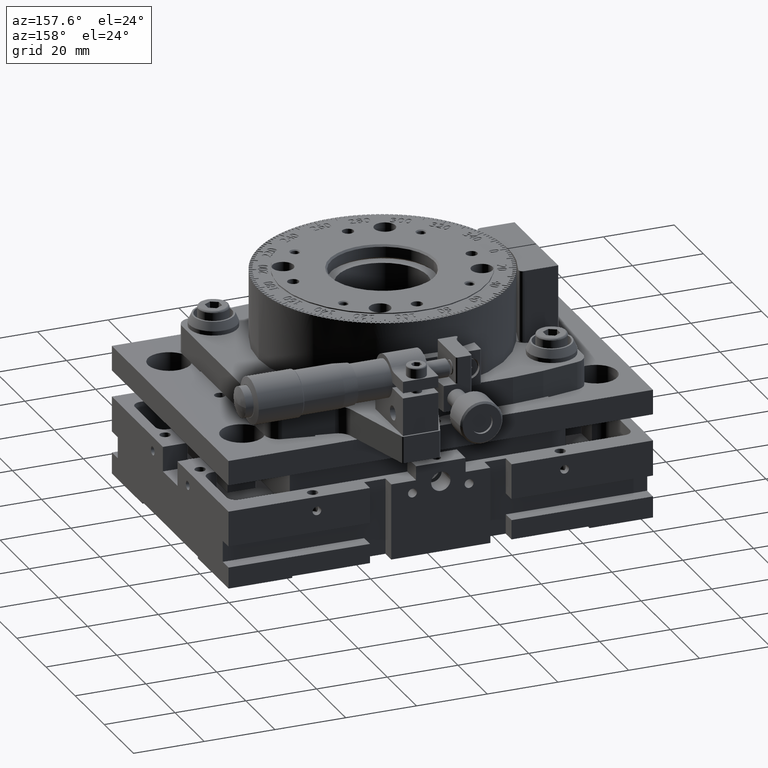
[diagram: clean part render]
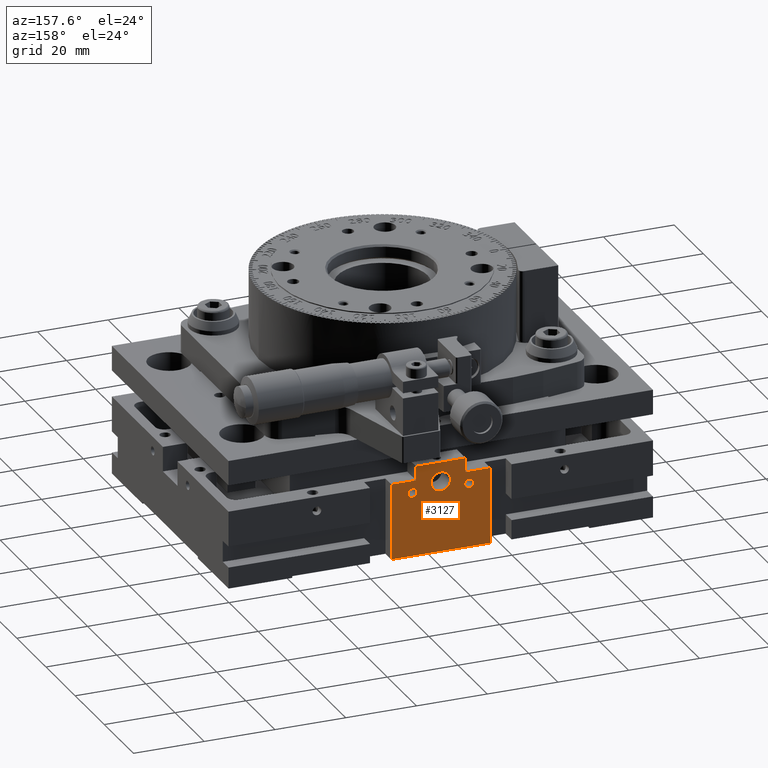
[diagram: same view with one face highlighted and labeled with its STEP entity id]
A machine part, auxiliary view. The second image highlights one B-rep face of the part: STEP entity #3127.
In plain terms, the highlighted face is a freeform B-spline surface patch.
Its self-contained STEP definition (entity closure, byte-faithful):
#3127=ADVANCED_FACE('',(#6324,#3657,#3658,#3659),#103637,.T.);
#3657=FACE_BOUND('',#9486,.T.);
#3658=FACE_BOUND('',#9487,.T.);
#3659=FACE_BOUND('',#9488,.T.);
#6324=FACE_OUTER_BOUND('',#9485,.T.);
#9485=EDGE_LOOP('',(#24416,#24417,#24418,#24419,#24420,#24421,#24422,#24423));
#9486=EDGE_LOOP('',(#24424,#24425));
#9487=EDGE_LOOP('',(#24426,#24427));
#9488=EDGE_LOOP('',(#24428,#24429));
#24416=ORIENTED_EDGE('',*,*,#91003,.F.);
#24417=ORIENTED_EDGE('',*,*,#91583,.T.);
#24418=ORIENTED_EDGE('',*,*,#91322,.F.);
#24419=ORIENTED_EDGE('',*,*,#91345,.F.);
#24420=ORIENTED_EDGE('',*,*,#91351,.F.);
#24421=ORIENTED_EDGE('',*,*,#91349,.F.);
#24422=ORIENTED_EDGE('',*,*,#91303,.F.);
#24423=ORIENTED_EDGE('',*,*,#91582,.F.);
#24424=ORIENTED_EDGE('',*,*,#90956,.F.);
#24425=ORIENTED_EDGE('',*,*,#91584,.T.);
#24426=ORIENTED_EDGE('',*,*,#90964,.F.);
#24427=ORIENTED_EDGE('',*,*,#91585,.T.);
#24428=ORIENTED_EDGE('',*,*,#90984,.F.);
#24429=ORIENTED_EDGE('',*,*,#91586,.T.);
#42705=B_SPLINE_CURVE_WITH_KNOTS('',1,(#185273,#185274),.UNSPECIFIED.,.F.,
 .F.,(2,2),(-3.92699081698724,0.),.UNSPECIFIED.);
#42717=B_SPLINE_CURVE_WITH_KNOTS('',1,(#185317,#185318),.UNSPECIFIED.,.F.,
 .F.,(2,2),(-3.92699081698724,0.),.UNSPECIFIED.);
#42753=B_SPLINE_CURVE_WITH_KNOTS('',1,(#185493,#185494),.UNSPECIFIED.,.F.,
 .F.,(2,2),(-8.57497714797334,0.),.UNSPECIFIED.);
#42787=B_SPLINE_CURVE_WITH_KNOTS('',1,(#185576,#185577),.UNSPECIFIED.,.F.,
 .F.,(2,2),(-27.9999999999999,0.),.UNSPECIFIED.);
#42788=B_SPLINE_CURVE_WITH_KNOTS('',1,(#185578,#185579),.UNSPECIFIED.,.F.,
 .F.,(2,2),(-27.9999999999999,0.),.UNSPECIFIED.);
#43409=B_SPLINE_CURVE_WITH_KNOTS('',1,(#187651,#187652),.UNSPECIFIED.,.F.,
 .F.,(2,2),(0.,7.),.UNSPECIFIED.);
#43410=B_SPLINE_CURVE_WITH_KNOTS('',1,(#187653,#187654),.UNSPECIFIED.,.F.,
 .F.,(2,2),(0.,7.),.UNSPECIFIED.);
#43432=B_SPLINE_CURVE_WITH_KNOTS('',1,(#187761,#187762),.UNSPECIFIED.,.F.,
 .F.,(2,2),(0.,7.),.UNSPECIFIED.);
#43433=B_SPLINE_CURVE_WITH_KNOTS('',1,(#187763,#187764),.UNSPECIFIED.,.F.,
 .F.,(2,2),(0.,7.),.UNSPECIFIED.);
#43476=B_SPLINE_CURVE_WITH_KNOTS('',1,(#187951,#187952),.UNSPECIFIED.,.F.,
 .F.,(2,2),(-4.,0.),.UNSPECIFIED.);
#43477=B_SPLINE_CURVE_WITH_KNOTS('',1,(#187953,#187954),.UNSPECIFIED.,.F.,
 .F.,(2,2),(-4.,0.),.UNSPECIFIED.);
#43486=B_SPLINE_CURVE_WITH_KNOTS('',1,(#187971,#187972),.UNSPECIFIED.,.F.,
 .F.,(2,2),(0.,4.),.UNSPECIFIED.);
#43487=B_SPLINE_CURVE_WITH_KNOTS('',1,(#187973,#187974),.UNSPECIFIED.,.F.,
 .F.,(2,2),(0.,4.),.UNSPECIFIED.);
#43492=B_SPLINE_CURVE_WITH_KNOTS('',1,(#187983,#187984),.UNSPECIFIED.,.F.,
 .F.,(2,2),(-14.,0.),.UNSPECIFIED.);
#43493=B_SPLINE_CURVE_WITH_KNOTS('',1,(#187985,#187986),.UNSPECIFIED.,.F.,
 .F.,(2,2),(-14.,0.),.UNSPECIFIED.);
#44198=B_SPLINE_CURVE_WITH_KNOTS('',1,(#190506,#190507),.UNSPECIFIED.,.F.,
 .F.,(2,2),(-21.5,0.),.UNSPECIFIED.);
#44199=B_SPLINE_CURVE_WITH_KNOTS('',1,(#190508,#190509),.UNSPECIFIED.,.F.,
 .F.,(2,2),(-21.5,0.),.UNSPECIFIED.);
#44202=B_SPLINE_CURVE_WITH_KNOTS('',1,(#190514,#190515),.UNSPECIFIED.,.F.,
 .F.,(2,2),(-27.9999999999999,0.),.UNSPECIFIED.);
#44203=B_SPLINE_CURVE_WITH_KNOTS('',1,(#190516,#190517),.UNSPECIFIED.,.F.,
 .F.,(2,2),(-21.5,0.),.UNSPECIFIED.);
#44204=B_SPLINE_CURVE_WITH_KNOTS('',1,(#190518,#190519),.UNSPECIFIED.,.F.,
 .F.,(2,2),(-21.5,0.),.UNSPECIFIED.);
#44205=B_SPLINE_CURVE_WITH_KNOTS('',1,(#190520,#190521),.UNSPECIFIED.,.F.,
 .F.,(2,2),(0.,7.),.UNSPECIFIED.);
#44206=B_SPLINE_CURVE_WITH_KNOTS('',1,(#190522,#190523),.UNSPECIFIED.,.F.,
 .F.,(2,2),(-4.,0.),.UNSPECIFIED.);
#44207=B_SPLINE_CURVE_WITH_KNOTS('',1,(#190524,#190525),.UNSPECIFIED.,.F.,
 .F.,(2,2),(-14.,0.),.UNSPECIFIED.);
#44208=B_SPLINE_CURVE_WITH_KNOTS('',1,(#190526,#190527),.UNSPECIFIED.,.F.,
 .F.,(2,2),(0.,4.),.UNSPECIFIED.);
#44209=B_SPLINE_CURVE_WITH_KNOTS('',1,(#190528,#190529),.UNSPECIFIED.,.F.,
 .F.,(2,2),(0.,7.),.UNSPECIFIED.);
#44210=B_SPLINE_CURVE_WITH_KNOTS('',1,(#190530,#190531),.UNSPECIFIED.,.F.,
 .F.,(2,2),(-21.5,0.),.UNSPECIFIED.);
#44214=B_SPLINE_CURVE_WITH_KNOTS('',1,(#190583,#190584),.UNSPECIFIED.,.F.,
 .F.,(2,2),(-21.5,0.),.UNSPECIFIED.);
#44250=B_SPLINE_CURVE_WITH_KNOTS('',1,(#190687,#190688),.UNSPECIFIED.,.F.,
 .F.,(2,2),(0.,3.92699081698724),.UNSPECIFIED.);
#44258=B_SPLINE_CURVE_WITH_KNOTS('',1,(#190703,#190704),.UNSPECIFIED.,.F.,
 .F.,(2,2),(0.,3.92699081698724),.UNSPECIFIED.);
#44266=B_SPLINE_CURVE_WITH_KNOTS('',1,(#190719,#190720),.UNSPECIFIED.,.F.,
 .F.,(2,2),(0.,8.57497714797334),.UNSPECIFIED.);
#58543=PCURVE('',#101451,#74136);
#58551=PCURVE('',#101453,#74144);
#58575=PCURVE('',#101459,#74168);
#58594=PCURVE('',#103512,#74187);
#59103=PCURVE('',#103592,#74696);
#59123=PCURVE('',#103593,#74716);
#59166=PCURVE('',#103598,#74759);
#59172=PCURVE('',#103599,#74765);
#59176=PCURVE('',#103600,#74769);
#59818=PCURVE('',#103636,#75411);
#59821=PCURVE('',#103637,#75414);
#59822=PCURVE('',#103637,#75415);
#59823=PCURVE('',#103637,#75416);
#59824=PCURVE('',#103637,#75417);
#59825=PCURVE('',#103637,#75418);
#59826=PCURVE('',#103637,#75419);
#59827=PCURVE('',#103637,#75420);
#59828=PCURVE('',#103637,#75421);
#59829=PCURVE('',#103637,#75422);
#59830=PCURVE('',#103637,#75423);
#59831=PCURVE('',#103637,#75424);
#59832=PCURVE('',#103637,#75425);
#59833=PCURVE('',#103637,#75426);
#59834=PCURVE('',#103637,#75427);
#59838=PCURVE('',#103638,#75431);
#59874=PCURVE('',#101537,#75467);
#59882=PCURVE('',#101539,#75475);
#59890=PCURVE('',#101541,#75483);
#74136=DEFINITIONAL_REPRESENTATION('',(#42705),#197026);
#74144=DEFINITIONAL_REPRESENTATION('',(#42717),#197026);
#74168=DEFINITIONAL_REPRESENTATION('',(#42753),#197026);
#74187=DEFINITIONAL_REPRESENTATION('',(#42788),#197026);
#74696=DEFINITIONAL_REPRESENTATION('',(#43410),#197026);
#74716=DEFINITIONAL_REPRESENTATION('',(#43433),#197026);
#74759=DEFINITIONAL_REPRESENTATION('',(#43477),#197026);
#74765=DEFINITIONAL_REPRESENTATION('',(#43487),#197026);
#74769=DEFINITIONAL_REPRESENTATION('',(#43493),#197026);
#75411=DEFINITIONAL_REPRESENTATION('',(#44199),#197026);
#75414=DEFINITIONAL_REPRESENTATION('',(#44202),#197026);
#75415=DEFINITIONAL_REPRESENTATION('',(#44204),#197026);
#75416=DEFINITIONAL_REPRESENTATION('',(#44205),#197026);
#75417=DEFINITIONAL_REPRESENTATION('',(#44206),#197026);
#75418=DEFINITIONAL_REPRESENTATION('',(#44207),#197026);
#75419=DEFINITIONAL_REPRESENTATION('',(#44208),#197026);
#75420=DEFINITIONAL_REPRESENTATION('',(#44209),#197026);
#75421=DEFINITIONAL_REPRESENTATION('',(#44210),#197026);
#75422=DEFINITIONAL_REPRESENTATION('',(#95248),#197026);
#75423=DEFINITIONAL_REPRESENTATION('',(#95250),#197026);
#75424=DEFINITIONAL_REPRESENTATION('',(#95251),#197026);
#75425=DEFINITIONAL_REPRESENTATION('',(#95253),#197026);
#75426=DEFINITIONAL_REPRESENTATION('',(#95254),#197026);
#75427=DEFINITIONAL_REPRESENTATION('',(#95256),#197026);
#75431=DEFINITIONAL_REPRESENTATION('',(#44214),#197026);
#75467=DEFINITIONAL_REPRESENTATION('',(#44250),#197026);
#75475=DEFINITIONAL_REPRESENTATION('',(#44258),#197026);
#75483=DEFINITIONAL_REPRESENTATION('',(#44266),#197026);
#83098=SURFACE_CURVE('',#94840,(#58543,#59829),.PCURVE_S1.);
#83106=SURFACE_CURVE('',#94844,(#58551,#59831),.PCURVE_S1.);
#83126=SURFACE_CURVE('',#94852,(#58575,#59833),.PCURVE_S1.);
#83145=SURFACE_CURVE('',#42787,(#58594,#59821),.PCURVE_S1.);
#83445=SURFACE_CURVE('',#43409,(#59103,#59827),.PCURVE_S1.);
#83464=SURFACE_CURVE('',#43432,(#59123,#59823),.PCURVE_S1.);
#83487=SURFACE_CURVE('',#43476,(#59166,#59824),.PCURVE_S1.);
#83491=SURFACE_CURVE('',#43486,(#59172,#59826),.PCURVE_S1.);
#83493=SURFACE_CURVE('',#43492,(#59176,#59825),.PCURVE_S1.);
#83724=SURFACE_CURVE('',#44198,(#59818,#59828),.PCURVE_S1.);
#83725=SURFACE_CURVE('',#44203,(#59822,#59838),.PCURVE_S1.);
#83726=SURFACE_CURVE('',#95249,(#59830,#59874),.PCURVE_S1.);
#83727=SURFACE_CURVE('',#95252,(#59832,#59882),.PCURVE_S1.);
#83728=SURFACE_CURVE('',#95255,(#59834,#59890),.PCURVE_S1.);
#90956=EDGE_CURVE('',#100205,#100206,#83098,.T.);
#90964=EDGE_CURVE('',#100213,#100214,#83106,.T.);
#90984=EDGE_CURVE('',#100229,#100230,#83126,.T.);
#91003=EDGE_CURVE('',#100247,#100248,#83145,.T.);
#91303=EDGE_CURVE('',#100454,#100455,#83445,.T.);
#91322=EDGE_CURVE('',#100472,#100473,#83464,.T.);
#91345=EDGE_CURVE('',#100491,#100472,#83487,.T.);
#91349=EDGE_CURVE('',#100455,#100492,#83491,.T.);
#91351=EDGE_CURVE('',#100492,#100491,#83493,.T.);
#91582=EDGE_CURVE('',#100248,#100454,#83724,.T.);
#91583=EDGE_CURVE('',#100247,#100473,#83725,.T.);
#91584=EDGE_CURVE('',#100205,#100206,#83726,.T.);
#91585=EDGE_CURVE('',#100213,#100214,#83727,.T.);
#91586=EDGE_CURVE('',#100229,#100230,#83728,.T.);
#94840=(
BOUNDED_CURVE()
B_SPLINE_CURVE(2,(#185268,#185269,#185270,#185271,#185272),
 .UNSPECIFIED.,.F.,.F.)
B_SPLINE_CURVE_WITH_KNOTS((3,2,3),(-3.92699081698724,-1.96349540849362,
0.),.UNSPECIFIED.)
CURVE()
GEOMETRIC_REPRESENTATION_ITEM()
RATIONAL_B_SPLINE_CURVE((1.,0.707106781186548,1.,0.707106781186548,1.))
REPRESENTATION_ITEM('')
);
#94844=(
BOUNDED_CURVE()
B_SPLINE_CURVE(2,(#185312,#185313,#185314,#185315,#185316),
 .UNSPECIFIED.,.F.,.F.)
B_SPLINE_CURVE_WITH_KNOTS((3,2,3),(-3.92699081698724,-1.96349540849362,
0.),.UNSPECIFIED.)
CURVE()
GEOMETRIC_REPRESENTATION_ITEM()
RATIONAL_B_SPLINE_CURVE((1.,0.707106781186548,1.,0.707106781186548,1.))
REPRESENTATION_ITEM('')
);
#94852=(
BOUNDED_CURVE()
B_SPLINE_CURVE(2,(#185488,#185489,#185490,#185491,#185492),
 .UNSPECIFIED.,.F.,.F.)
B_SPLINE_CURVE_WITH_KNOTS((3,2,3),(-8.57497714797334,-4.28748857398667,
0.),.UNSPECIFIED.)
CURVE()
GEOMETRIC_REPRESENTATION_ITEM()
RATIONAL_B_SPLINE_CURVE((1.,0.707106781186548,1.,0.707106781186548,1.))
REPRESENTATION_ITEM('')
);
#95248=(
BOUNDED_CURVE()
B_SPLINE_CURVE(2,(#190532,#190533,#190534,#190535,#190536),
 .UNSPECIFIED.,.F.,.F.)
B_SPLINE_CURVE_WITH_KNOTS((3,2,3),(-3.92699081698724,-1.96349540849362,
0.),.UNSPECIFIED.)
CURVE()
GEOMETRIC_REPRESENTATION_ITEM()
RATIONAL_B_SPLINE_CURVE((1.,0.707106781186548,1.,0.707106781186548,1.))
REPRESENTATION_ITEM('')
);
#95249=(
BOUNDED_CURVE()
B_SPLINE_CURVE(2,(#190537,#190538,#190539,#190540,#190541),
 .UNSPECIFIED.,.F.,.F.)
B_SPLINE_CURVE_WITH_KNOTS((3,2,3),(0.,1.96349540849362,3.92699081698724),
 .UNSPECIFIED.)
CURVE()
GEOMETRIC_REPRESENTATION_ITEM()
RATIONAL_B_SPLINE_CURVE((1.,0.707106781186548,1.,0.707106781186548,1.))
REPRESENTATION_ITEM('')
);
#95250=(
BOUNDED_CURVE()
B_SPLINE_CURVE(2,(#190542,#190543,#190544,#190545,#190546),
 .UNSPECIFIED.,.F.,.F.)
B_SPLINE_CURVE_WITH_KNOTS((3,2,3),(0.,1.96349540849362,3.92699081698724),
 .UNSPECIFIED.)
CURVE()
GEOMETRIC_REPRESENTATION_ITEM()
RATIONAL_B_SPLINE_CURVE((1.,0.707106781186548,1.,0.707106781186548,1.))
REPRESENTATION_ITEM('')
);
#95251=(
BOUNDED_CURVE()
B_SPLINE_CURVE(2,(#190547,#190548,#190549,#190550,#190551),
 .UNSPECIFIED.,.F.,.F.)
B_SPLINE_CURVE_WITH_KNOTS((3,2,3),(-3.92699081698724,-1.96349540849362,
0.),.UNSPECIFIED.)
CURVE()
GEOMETRIC_REPRESENTATION_ITEM()
RATIONAL_B_SPLINE_CURVE((1.,0.707106781186548,1.,0.707106781186548,1.))
REPRESENTATION_ITEM('')
);
#95252=(
BOUNDED_CURVE()
B_SPLINE_CURVE(2,(#190552,#190553,#190554,#190555,#190556),
 .UNSPECIFIED.,.F.,.F.)
B_SPLINE_CURVE_WITH_KNOTS((3,2,3),(0.,1.96349540849362,3.92699081698724),
 .UNSPECIFIED.)
CURVE()
GEOMETRIC_REPRESENTATION_ITEM()
RATIONAL_B_SPLINE_CURVE((1.,0.707106781186548,1.,0.707106781186548,1.))
REPRESENTATION_ITEM('')
);
#95253=(
BOUNDED_CURVE()
B_SPLINE_CURVE(2,(#190557,#190558,#190559,#190560,#190561),
 .UNSPECIFIED.,.F.,.F.)
B_SPLINE_CURVE_WITH_KNOTS((3,2,3),(0.,1.96349540849362,3.92699081698724),
 .UNSPECIFIED.)
CURVE()
GEOMETRIC_REPRESENTATION_ITEM()
RATIONAL_B_SPLINE_CURVE((1.,0.707106781186548,1.,0.707106781186548,1.))
REPRESENTATION_ITEM('')
);
#95254=(
BOUNDED_CURVE()
B_SPLINE_CURVE(2,(#190562,#190563,#190564,#190565,#190566),
 .UNSPECIFIED.,.F.,.F.)
B_SPLINE_CURVE_WITH_KNOTS((3,2,3),(-8.57497714797334,-4.28748857398667,
0.),.UNSPECIFIED.)
CURVE()
GEOMETRIC_REPRESENTATION_ITEM()
RATIONAL_B_SPLINE_CURVE((1.,0.707106781186548,1.,0.707106781186548,1.))
REPRESENTATION_ITEM('')
);
#95255=(
BOUNDED_CURVE()
B_SPLINE_CURVE(2,(#190567,#190568,#190569,#190570,#190571),
 .UNSPECIFIED.,.F.,.F.)
B_SPLINE_CURVE_WITH_KNOTS((3,2,3),(0.,4.28748857398667,8.57497714797334),
 .UNSPECIFIED.)
CURVE()
GEOMETRIC_REPRESENTATION_ITEM()
RATIONAL_B_SPLINE_CURVE((1.,0.707106781186548,1.,0.707106781186548,1.))
REPRESENTATION_ITEM('')
);
#95256=(
BOUNDED_CURVE()
B_SPLINE_CURVE(2,(#190572,#190573,#190574,#190575,#190576),
 .UNSPECIFIED.,.F.,.F.)
B_SPLINE_CURVE_WITH_KNOTS((3,2,3),(0.,4.28748857398667,8.57497714797334),
 .UNSPECIFIED.)
CURVE()
GEOMETRIC_REPRESENTATION_ITEM()
RATIONAL_B_SPLINE_CURVE((1.,0.707106781186548,1.,0.707106781186548,1.))
REPRESENTATION_ITEM('')
);
#100205=VERTEX_POINT('',#182069);
#100206=VERTEX_POINT('',#182070);
#100213=VERTEX_POINT('',#182077);
#100214=VERTEX_POINT('',#182078);
#100229=VERTEX_POINT('',#182093);
#100230=VERTEX_POINT('',#182094);
#100247=VERTEX_POINT('',#182111);
#100248=VERTEX_POINT('',#182112);
#100454=VERTEX_POINT('',#182318);
#100455=VERTEX_POINT('',#182319);
#100472=VERTEX_POINT('',#182336);
#100473=VERTEX_POINT('',#182337);
#100491=VERTEX_POINT('',#182355);
#100492=VERTEX_POINT('',#182356);
#101451=(
BOUNDED_SURFACE()
B_SPLINE_SURFACE(1,2,((#179830,#179831,#179832,#179833,#179834),(#179835,
#179836,#179837,#179838,#179839)),.UNSPECIFIED.,.F.,.F.,.F.)
B_SPLINE_SURFACE_WITH_KNOTS((2,2),(3,2,3),(0.,7.44),(0.,1.5707963267949,
3.14159265358979),.UNSPECIFIED.)
GEOMETRIC_REPRESENTATION_ITEM()
RATIONAL_B_SPLINE_SURFACE(((1.,0.707106781186548,1.,0.707106781186548,1.),
(1.,0.707106781186548,1.,0.707106781186548,1.)))
REPRESENTATION_ITEM('')
SURFACE()
);
#101453=(
BOUNDED_SURFACE()
B_SPLINE_SURFACE(1,2,((#179850,#179851,#179852,#179853,#179854),(#179855,
#179856,#179857,#179858,#179859)),.UNSPECIFIED.,.F.,.F.,.F.)
B_SPLINE_SURFACE_WITH_KNOTS((2,2),(3,2,3),(0.,7.44),(0.,1.5707963267949,
3.14159265358979),.UNSPECIFIED.)
GEOMETRIC_REPRESENTATION_ITEM()
RATIONAL_B_SPLINE_SURFACE(((1.,0.707106781186548,1.,0.707106781186548,1.),
(1.,0.707106781186548,1.,0.707106781186548,1.)))
REPRESENTATION_ITEM('')
SURFACE()
);
#101459=(
BOUNDED_SURFACE()
B_SPLINE_SURFACE(1,2,((#179942,#179943,#179944,#179945,#179946),(#179947,
#179948,#179949,#179950,#179951)),.UNSPECIFIED.,.F.,.F.,.F.)
B_SPLINE_SURFACE_WITH_KNOTS((2,2),(3,2,3),(0.,7.44000000000003),(0.,1.5707963267949,
3.14159265358979),.UNSPECIFIED.)
GEOMETRIC_REPRESENTATION_ITEM()
RATIONAL_B_SPLINE_SURFACE(((1.,0.707106781186548,1.,0.707106781186548,1.),
(1.,0.707106781186548,1.,0.707106781186548,1.)))
REPRESENTATION_ITEM('')
SURFACE()
);
#101537=(
BOUNDED_SURFACE()
B_SPLINE_SURFACE(1,2,((#181774,#181775,#181776,#181777,#181778),(#181779,
#181780,#181781,#181782,#181783)),.UNSPECIFIED.,.F.,.F.,.F.)
B_SPLINE_SURFACE_WITH_KNOTS((2,2),(3,2,3),(0.,7.44),(3.14159265358979,4.71238898038469,
6.28318530717959),.UNSPECIFIED.)
GEOMETRIC_REPRESENTATION_ITEM()
RATIONAL_B_SPLINE_SURFACE(((1.,0.707106781186548,1.,0.707106781186548,1.),
(1.,0.707106781186548,1.,0.707106781186548,1.)))
REPRESENTATION_ITEM('')
SURFACE()
);
#101539=(
BOUNDED_SURFACE()
B_SPLINE_SURFACE(1,2,((#181794,#181795,#181796,#181797,#181798),(#181799,
#181800,#181801,#181802,#181803)),.UNSPECIFIED.,.F.,.F.,.F.)
B_SPLINE_SURFACE_WITH_KNOTS((2,2),(3,2,3),(0.,7.44),(3.14159265358979,4.71238898038469,
6.28318530717959),.UNSPECIFIED.)
GEOMETRIC_REPRESENTATION_ITEM()
RATIONAL_B_SPLINE_SURFACE(((1.,0.707106781186548,1.,0.707106781186548,1.),
(1.,0.707106781186548,1.,0.707106781186548,1.)))
REPRESENTATION_ITEM('')
SURFACE()
);
#101541=(
BOUNDED_SURFACE()
B_SPLINE_SURFACE(1,2,((#181814,#181815,#181816,#181817,#181818),(#181819,
#181820,#181821,#181822,#181823)),.UNSPECIFIED.,.F.,.F.,.F.)
B_SPLINE_SURFACE_WITH_KNOTS((2,2),(3,2,3),(0.,7.44000000000003),(3.14159265358979,
4.71238898038469,6.28318530717959),.UNSPECIFIED.)
GEOMETRIC_REPRESENTATION_ITEM()
RATIONAL_B_SPLINE_SURFACE(((1.,0.707106781186548,1.,0.707106781186548,1.),
(1.,0.707106781186548,1.,0.707106781186548,1.)))
REPRESENTATION_ITEM('')
SURFACE()
);
#103512=B_SPLINE_SURFACE_WITH_KNOTS('',1,1,((#179962,#179963),(#179964,
#179965)),.UNSPECIFIED.,.F.,.F.,.F.,(2,2),(2,2),(-48.818113207547,47.4218867924529),
(-71.7615094339623,72.4784905660378),.UNSPECIFIED.);
#103592=B_SPLINE_SURFACE_WITH_KNOTS('',1,1,((#180426,#180427),(#180428,
#180429)),.UNSPECIFIED.,.F.,.F.,.F.,(2,2),(2,2),(1.1355555555555,64.9755555555556),
(1.37999999999995,43.62),.UNSPECIFIED.);
#103593=B_SPLINE_SURFACE_WITH_KNOTS('',1,1,((#180430,#180431),(#180432,
#180433)),.UNSPECIFIED.,.F.,.F.,.F.,(2,2),(2,2),(-65.8644444444445,-2.02444444444436),
(1.37999999999988,43.62),.UNSPECIFIED.);
#103598=B_SPLINE_SURFACE_WITH_KNOTS('',1,1,((#180450,#180451),(#180452,
#180453)),.UNSPECIFIED.,.F.,.F.,.F.,(2,2),(2,2),(-0.520000000000002,4.52),
(-0.720000000000002,6.72),.UNSPECIFIED.);
#103599=B_SPLINE_SURFACE_WITH_KNOTS('',1,1,((#180454,#180455),(#180456,
#180457)),.UNSPECIFIED.,.F.,.F.,.F.,(2,2),(2,2),(-4.52,0.520000000000002),
(-6.72,0.720000000000002),.UNSPECIFIED.);
#103600=B_SPLINE_SURFACE_WITH_KNOTS('',1,1,((#180458,#180459),(#180460,
#180461)),.UNSPECIFIED.,.F.,.F.,.F.,(2,2),(2,2),(-8.52000000000001,8.52000000000011),
(-3.72000000000001,3.72000000000001),.UNSPECIFIED.);
#103636=B_SPLINE_SURFACE_WITH_KNOTS('',1,1,((#181682,#181683),(#181684,
#181685)),.UNSPECIFIED.,.F.,.F.,.F.,(2,2),(2,2),(-2.27,23.77),(-0.520000000000002,
4.52),.UNSPECIFIED.);
#103637=B_SPLINE_SURFACE_WITH_KNOTS('',1,1,((#181686,#181687),(#181688,
#181689)),.UNSPECIFIED.,.F.,.F.,.F.,(2,2),(2,2),(-24.17,6.67000000000002),
(-30.92,2.92),.UNSPECIFIED.);
#103638=B_SPLINE_SURFACE_WITH_KNOTS('',1,1,((#181690,#181691),(#181692,
#181693)),.UNSPECIFIED.,.F.,.F.,.F.,(2,2),(2,2),(-23.77,2.27000000000001),
(-4.52,0.520000000000002),.UNSPECIFIED.);
#179830=CARTESIAN_POINT('',(66.75,-20.3328225615781,18.));
#179831=CARTESIAN_POINT('',(66.75,-20.3328225615781,16.75));
#179832=CARTESIAN_POINT('',(68.,-20.3328225615781,16.75));
#179833=CARTESIAN_POINT('',(69.25,-20.3328225615781,16.75));
#179834=CARTESIAN_POINT('',(69.25,-20.3328225615781,18.));
#179835=CARTESIAN_POINT('',(66.75,-27.7728225615781,18.));
#179836=CARTESIAN_POINT('',(66.75,-27.7728225615781,16.75));
#179837=CARTESIAN_POINT('',(68.,-27.7728225615781,16.75));
#179838=CARTESIAN_POINT('',(69.25,-27.7728225615781,16.75));
#179839=CARTESIAN_POINT('',(69.25,-27.7728225615781,18.));
#179850=CARTESIAN_POINT('',(50.75,-20.3328225615781,18.));
#179851=CARTESIAN_POINT('',(50.75,-20.3328225615781,16.75));
#179852=CARTESIAN_POINT('',(52.,-20.3328225615781,16.75));
#179853=CARTESIAN_POINT('',(53.25,-20.3328225615781,16.75));
#179854=CARTESIAN_POINT('',(53.25,-20.3328225615781,18.));
#179855=CARTESIAN_POINT('',(50.75,-27.7728225615781,18.));
#179856=CARTESIAN_POINT('',(50.75,-27.7728225615781,16.75));
#179857=CARTESIAN_POINT('',(52.,-27.7728225615781,16.75));
#179858=CARTESIAN_POINT('',(53.25,-27.7728225615781,16.75));
#179859=CARTESIAN_POINT('',(53.25,-27.7728225615781,18.));
#179942=CARTESIAN_POINT('',(57.2705,-20.3328225615781,20.));
#179943=CARTESIAN_POINT('',(57.2705,-20.3328225615781,17.2705));
#179944=CARTESIAN_POINT('',(60.,-20.3328225615781,17.2705));
#179945=CARTESIAN_POINT('',(62.7295,-20.3328225615781,17.2705));
#179946=CARTESIAN_POINT('',(62.7295,-20.3328225615781,20.));
#179947=CARTESIAN_POINT('',(57.2705,-27.7728225615781,20.));
#179948=CARTESIAN_POINT('',(57.2705,-27.7728225615781,17.2705));
#179949=CARTESIAN_POINT('',(60.,-27.7728225615781,17.2705));
#179950=CARTESIAN_POINT('',(62.7295,-27.7728225615781,17.2705));
#179951=CARTESIAN_POINT('',(62.7295,-27.7728225615781,20.));
#179962=CARTESIAN_POINT('',(-12.1200000000001,-109.172822561578,-5.65489142778197E-14));
#179963=CARTESIAN_POINT('',(132.12,-109.172822561578,-5.36917335001219E-15));
#179964=CARTESIAN_POINT('',(-12.1200000000001,-12.9328225615781,-5.65489142778197E-14));
#179965=CARTESIAN_POINT('',(132.12,-12.932822561578,-5.3691733500122E-15));
#180426=CARTESIAN_POINT('',(61.5799999999999,-59.6728225615781,21.5));
#180427=CARTESIAN_POINT('',(61.5799999999999,-17.4328225615781,21.5));
#180428=CARTESIAN_POINT('',(125.42,-59.6728225615781,21.5));
#180429=CARTESIAN_POINT('',(125.42,-17.4328225615781,21.5));
#180430=CARTESIAN_POINT('',(-5.42000000000007,-59.6728225615783,21.5));
#180431=CARTESIAN_POINT('',(-5.42000000000011,-17.4328225615781,21.5));
#180432=CARTESIAN_POINT('',(58.42,-59.6728225615782,21.5));
#180433=CARTESIAN_POINT('',(58.42,-17.4328225615781,21.5));
#180450=CARTESIAN_POINT('',(53.,-27.7728225615781,20.98));
#180451=CARTESIAN_POINT('',(53.,-20.3328225615781,20.98));
#180452=CARTESIAN_POINT('',(53.,-27.7728225615781,26.02));
#180453=CARTESIAN_POINT('',(53.,-20.3328225615781,26.02));
#180454=CARTESIAN_POINT('',(66.9999999999999,-27.7728225615781,26.02));
#180455=CARTESIAN_POINT('',(66.9999999999999,-20.3328225615781,26.02));
#180456=CARTESIAN_POINT('',(66.9999999999999,-27.7728225615781,20.98));
#180457=CARTESIAN_POINT('',(66.9999999999999,-20.3328225615781,20.98));
#180458=CARTESIAN_POINT('',(51.4799999999999,-27.7728225615781,25.5));
#180459=CARTESIAN_POINT('',(51.4799999999999,-20.3328225615781,25.5));
#180460=CARTESIAN_POINT('',(68.52,-27.7728225615781,25.5));
#180461=CARTESIAN_POINT('',(68.52,-20.3328225615781,25.5));
#181682=CARTESIAN_POINT('',(73.9999999999999,-25.5728225615781,23.77));
#181683=CARTESIAN_POINT('',(73.9999999999999,-20.5328225615781,23.77));
#181684=CARTESIAN_POINT('',(73.9999999999999,-25.5728225615781,-2.27000000000003));
#181685=CARTESIAN_POINT('',(73.9999999999999,-20.5328225615781,-2.27000000000003));
#181686=CARTESIAN_POINT('',(43.0799999999999,-21.0528225615781,-2.67000000000005));
#181687=CARTESIAN_POINT('',(76.9199999999999,-21.0528225615781,-2.67000000000004));
#181688=CARTESIAN_POINT('',(43.0799999999999,-21.0528225615781,28.17));
#181689=CARTESIAN_POINT('',(76.9199999999999,-21.0528225615781,28.17));
#181690=CARTESIAN_POINT('',(45.9999999999999,-25.5728225615781,-2.27000000000004));
#181691=CARTESIAN_POINT('',(45.9999999999999,-20.5328225615781,-2.27000000000004));
#181692=CARTESIAN_POINT('',(45.9999999999999,-25.5728225615781,23.77));
#181693=CARTESIAN_POINT('',(45.9999999999999,-20.5328225615781,23.77));
#181774=CARTESIAN_POINT('',(69.25,-20.3328225615781,18.));
#181775=CARTESIAN_POINT('',(69.25,-20.3328225615781,19.25));
#181776=CARTESIAN_POINT('',(68.,-20.3328225615781,19.25));
#181777=CARTESIAN_POINT('',(66.75,-20.3328225615781,19.25));
#181778=CARTESIAN_POINT('',(66.75,-20.3328225615781,18.));
#181779=CARTESIAN_POINT('',(69.25,-27.7728225615781,18.));
#181780=CARTESIAN_POINT('',(69.25,-27.7728225615781,19.25));
#181781=CARTESIAN_POINT('',(68.,-27.7728225615781,19.25));
#181782=CARTESIAN_POINT('',(66.75,-27.7728225615781,19.25));
#181783=CARTESIAN_POINT('',(66.75,-27.7728225615781,18.));
#181794=CARTESIAN_POINT('',(53.25,-20.3328225615781,18.));
#181795=CARTESIAN_POINT('',(53.25,-20.3328225615781,19.25));
#181796=CARTESIAN_POINT('',(52.,-20.3328225615781,19.25));
#181797=CARTESIAN_POINT('',(50.75,-20.3328225615781,19.25));
#181798=CARTESIAN_POINT('',(50.75,-20.3328225615781,18.));
#181799=CARTESIAN_POINT('',(53.25,-27.7728225615781,18.));
#181800=CARTESIAN_POINT('',(53.25,-27.7728225615781,19.25));
#181801=CARTESIAN_POINT('',(52.,-27.7728225615781,19.25));
#181802=CARTESIAN_POINT('',(50.75,-27.7728225615781,19.25));
#181803=CARTESIAN_POINT('',(50.75,-27.7728225615781,18.));
#181814=CARTESIAN_POINT('',(62.7295,-20.3328225615781,20.));
#181815=CARTESIAN_POINT('',(62.7295,-20.3328225615781,22.7295));
#181816=CARTESIAN_POINT('',(60.,-20.3328225615781,22.7295));
#181817=CARTESIAN_POINT('',(57.2705,-20.3328225615781,22.7295));
#181818=CARTESIAN_POINT('',(57.2705,-20.3328225615781,20.));
#181819=CARTESIAN_POINT('',(62.7295,-27.7728225615781,20.));
#181820=CARTESIAN_POINT('',(62.7295,-27.7728225615781,22.7295));
#181821=CARTESIAN_POINT('',(60.,-27.7728225615781,22.7295));
#181822=CARTESIAN_POINT('',(57.2705,-27.7728225615781,22.7295));
#181823=CARTESIAN_POINT('',(57.2705,-27.7728225615781,20.));
#182069=CARTESIAN_POINT('',(69.2499999999999,-21.0528225615781,18.));
#182070=CARTESIAN_POINT('',(66.7499999999999,-21.0528225615781,18.));
#182077=CARTESIAN_POINT('',(53.2499999999999,-21.0528225615781,18.));
#182078=CARTESIAN_POINT('',(50.7499999999999,-21.0528225615781,18.));
#182093=CARTESIAN_POINT('',(62.7294999999999,-21.0528225615781,20.));
#182094=CARTESIAN_POINT('',(57.2704999999999,-21.0528225615781,20.));
#182111=CARTESIAN_POINT('',(46.,-21.0528225615781,-3.46991570261801E-14));
#182112=CARTESIAN_POINT('',(73.9999999999999,-21.0528225615781,-2.73527019436948E-14));
#182318=CARTESIAN_POINT('',(73.9999999999999,-21.0528225615781,21.5));
#182319=CARTESIAN_POINT('',(66.9999999999999,-21.0528225615781,21.5));
#182336=CARTESIAN_POINT('',(52.9999999999999,-21.0528225615781,21.5));
#182337=CARTESIAN_POINT('',(45.9999999999999,-21.0528225615781,21.5));
#182355=CARTESIAN_POINT('',(52.9999999999999,-21.0528225615781,25.5));
#182356=CARTESIAN_POINT('',(66.9999999999999,-21.0528225615781,25.5));
#185268=CARTESIAN_POINT('',(69.2499999999999,-21.0528225615781,18.));
#185269=CARTESIAN_POINT('',(69.2499999999999,-21.0528225615781,16.75));
#185270=CARTESIAN_POINT('',(67.9999999999999,-21.0528225615781,16.75));
#185271=CARTESIAN_POINT('',(66.7499999999999,-21.0528225615781,16.75));
#185272=CARTESIAN_POINT('',(66.7499999999999,-21.0528225615781,18.));
#185273=CARTESIAN_POINT('',(0.719999999999996,3.14159265358979));
#185274=CARTESIAN_POINT('',(0.719999999999996,0.));
#185312=CARTESIAN_POINT('',(53.2499999999999,-21.0528225615781,18.));
#185313=CARTESIAN_POINT('',(53.2499999999999,-21.0528225615781,16.75));
#185314=CARTESIAN_POINT('',(51.9999999999999,-21.0528225615781,16.75));
#185315=CARTESIAN_POINT('',(50.7499999999999,-21.0528225615781,16.75));
#185316=CARTESIAN_POINT('',(50.7499999999999,-21.0528225615781,18.));
#185317=CARTESIAN_POINT('',(0.719999999999996,3.14159265358979));
#185318=CARTESIAN_POINT('',(0.719999999999996,0.));
#185488=CARTESIAN_POINT('',(62.7294999999999,-21.0528225615781,20.));
#185489=CARTESIAN_POINT('',(62.7294999999999,-21.0528225615781,17.2705));
#185490=CARTESIAN_POINT('',(59.9999999999999,-21.0528225615781,17.2705));
#185491=CARTESIAN_POINT('',(57.2704999999999,-21.0528225615781,17.2705));
#185492=CARTESIAN_POINT('',(57.2704999999999,-21.0528225615781,20.));
#185493=CARTESIAN_POINT('',(0.72000000000001,3.14159265358979));
#185494=CARTESIAN_POINT('',(0.720000000000017,0.));
#185576=CARTESIAN_POINT('',(46.,-21.0528225615781,-3.46991570261801E-14));
#185577=CARTESIAN_POINT('',(73.9999999999999,-21.0528225615781,-2.73527019436948E-14));
#185578=CARTESIAN_POINT('',(39.3018867924529,-13.6415094339622));
#185579=CARTESIAN_POINT('',(39.3018867924529,14.3584905660377));
#187651=CARTESIAN_POINT('',(73.9999999999999,-21.0528225615781,21.5));
#187652=CARTESIAN_POINT('',(66.9999999999999,-21.0528225615781,21.5));
#187653=CARTESIAN_POINT('',(13.5555555555555,40.));
#187654=CARTESIAN_POINT('',(6.55555555555554,40.));
#187761=CARTESIAN_POINT('',(52.9999999999999,-21.0528225615781,21.5));
#187762=CARTESIAN_POINT('',(45.9999999999999,-21.0528225615781,21.5));
#187763=CARTESIAN_POINT('',(-7.44444444444447,40.));
#187764=CARTESIAN_POINT('',(-14.4444444444445,40.));
#187951=CARTESIAN_POINT('',(52.9999999999999,-21.0528225615781,25.5));
#187952=CARTESIAN_POINT('',(52.9999999999999,-21.0528225615781,21.5));
#187953=CARTESIAN_POINT('',(4.,6.));
#187954=CARTESIAN_POINT('',(1.48694818880037E-30,6.));
#187971=CARTESIAN_POINT('',(66.9999999999999,-21.0528225615781,21.5));
#187972=CARTESIAN_POINT('',(66.9999999999999,-21.0528225615781,25.5));
#187973=CARTESIAN_POINT('',(0.,0.));
#187974=CARTESIAN_POINT('',(-4.,1.04086243872621E-29));
#187983=CARTESIAN_POINT('',(66.9999999999999,-21.0528225615781,25.5));
#187984=CARTESIAN_POINT('',(52.9999999999999,-21.0528225615781,25.5));
#187985=CARTESIAN_POINT('',(7.00000000000002,2.99999999999999));
#187986=CARTESIAN_POINT('',(-7.,3.00000000000001));
#190506=CARTESIAN_POINT('',(73.9999999999999,-21.0528225615781,-2.73527019436948E-14));
#190507=CARTESIAN_POINT('',(73.9999999999999,-21.0528225615781,21.5));
#190508=CARTESIAN_POINT('',(21.5,4.));
#190509=CARTESIAN_POINT('',(6.89482920090632E-31,4.));
#190514=CARTESIAN_POINT('',(-21.5,-27.9999999999999));
#190515=CARTESIAN_POINT('',(-21.5,-7.62870514384264E-15));
#190516=CARTESIAN_POINT('',(46.,-21.0528225615781,-3.46991570261801E-14));
#190517=CARTESIAN_POINT('',(45.9999999999999,-21.0528225615781,21.5));
#190518=CARTESIAN_POINT('',(-21.5,-27.9999999999999));
#190519=CARTESIAN_POINT('',(9.93505786174854E-15,-28.));
#190520=CARTESIAN_POINT('',(7.45129339631141E-15,-21.));
#190521=CARTESIAN_POINT('',(9.93505786174854E-15,-28.));
#190522=CARTESIAN_POINT('',(4.00000000000001,-21.));
#190523=CARTESIAN_POINT('',(7.45129339631141E-15,-21.));
#190524=CARTESIAN_POINT('',(4.,-7.));
#190525=CARTESIAN_POINT('',(4.00000000000001,-21.));
#190526=CARTESIAN_POINT('',(2.48376446543714E-15,-7.));
#190527=CARTESIAN_POINT('',(4.,-7.));
#190528=CARTESIAN_POINT('',(0.,0.));
#190529=CARTESIAN_POINT('',(2.48376446543714E-15,-7.));
#190530=CARTESIAN_POINT('',(-21.5,-7.62870514384264E-15));
#190531=CARTESIAN_POINT('',(0.,0.));
#190532=CARTESIAN_POINT('',(-3.5,-4.75));
#190533=CARTESIAN_POINT('',(-4.75,-4.75000000000002));
#190534=CARTESIAN_POINT('',(-4.75,-6.00000000000001));
#190535=CARTESIAN_POINT('',(-4.75,-7.25));
#190536=CARTESIAN_POINT('',(-3.5,-7.25));
#190537=CARTESIAN_POINT('',(69.2499999999999,-21.0528225615781,18.));
#190538=CARTESIAN_POINT('',(69.2499999999999,-21.0528225615781,19.25));
#190539=CARTESIAN_POINT('',(67.9999999999999,-21.0528225615781,19.25));
#190540=CARTESIAN_POINT('',(66.75,-21.0528225615781,19.25));
#190541=CARTESIAN_POINT('',(66.7499999999999,-21.0528225615781,18.));
#190542=CARTESIAN_POINT('',(-3.5,-4.75));
#190543=CARTESIAN_POINT('',(-2.25,-4.75000000000002));
#190544=CARTESIAN_POINT('',(-2.25,-6.00000000000001));
#190545=CARTESIAN_POINT('',(-2.25,-7.25));
#190546=CARTESIAN_POINT('',(-3.5,-7.25));
#190547=CARTESIAN_POINT('',(-3.49999999999999,-20.75));
#190548=CARTESIAN_POINT('',(-4.75,-20.75));
#190549=CARTESIAN_POINT('',(-4.74999999999999,-22.));
#190550=CARTESIAN_POINT('',(-4.75,-23.25));
#190551=CARTESIAN_POINT('',(-3.49999999999999,-23.25));
#190552=CARTESIAN_POINT('',(53.2499999999999,-21.0528225615781,18.));
#190553=CARTESIAN_POINT('',(53.2499999999999,-21.0528225615781,19.25));
#190554=CARTESIAN_POINT('',(51.9999999999999,-21.0528225615781,19.25));
#190555=CARTESIAN_POINT('',(50.7499999999999,-21.0528225615781,19.25));
#190556=CARTESIAN_POINT('',(50.7499999999999,-21.0528225615781,18.));
#190557=CARTESIAN_POINT('',(-3.49999999999999,-20.75));
#190558=CARTESIAN_POINT('',(-2.25,-20.75));
#190559=CARTESIAN_POINT('',(-2.24999999999999,-22.));
#190560=CARTESIAN_POINT('',(-2.25,-23.25));
#190561=CARTESIAN_POINT('',(-3.49999999999999,-23.25));
#190562=CARTESIAN_POINT('',(-1.5,-11.2705));
#190563=CARTESIAN_POINT('',(-4.2295,-11.2705));
#190564=CARTESIAN_POINT('',(-4.2295,-14.));
#190565=CARTESIAN_POINT('',(-4.2295,-16.7295));
#190566=CARTESIAN_POINT('',(-1.49999999999999,-16.7295));
#190567=CARTESIAN_POINT('',(62.7294999999999,-21.0528225615781,20.));
#190568=CARTESIAN_POINT('',(62.7294999999999,-21.0528225615781,22.7295));
#190569=CARTESIAN_POINT('',(59.9999999999999,-21.0528225615781,22.7295));
#190570=CARTESIAN_POINT('',(57.2704999999999,-21.0528225615781,22.7295));
#190571=CARTESIAN_POINT('',(57.2704999999999,-21.0528225615781,20.));
#190572=CARTESIAN_POINT('',(-1.5,-11.2705));
#190573=CARTESIAN_POINT('',(1.2295,-11.2705));
#190574=CARTESIAN_POINT('',(1.22950000000001,-14.));
#190575=CARTESIAN_POINT('',(1.2295,-16.7295));
#190576=CARTESIAN_POINT('',(-1.49999999999999,-16.7295));
#190583=CARTESIAN_POINT('',(-21.5,-3.30837958549741E-30));
#190584=CARTESIAN_POINT('',(0.,0.));
#190687=CARTESIAN_POINT('',(0.719999999999996,3.14159265358979));
#190688=CARTESIAN_POINT('',(0.719999999999998,6.28318530717959));
#190703=CARTESIAN_POINT('',(0.719999999999996,3.14159265358979));
#190704=CARTESIAN_POINT('',(0.719999999999998,6.28318530717959));
#190719=CARTESIAN_POINT('',(0.72000000000001,3.14159265358979));
#190720=CARTESIAN_POINT('',(0.720000000000019,6.28318530717959));
#197026=(
GEOMETRIC_REPRESENTATION_CONTEXT(2)
PARAMETRIC_REPRESENTATION_CONTEXT()
REPRESENTATION_CONTEXT('pspace','')
);